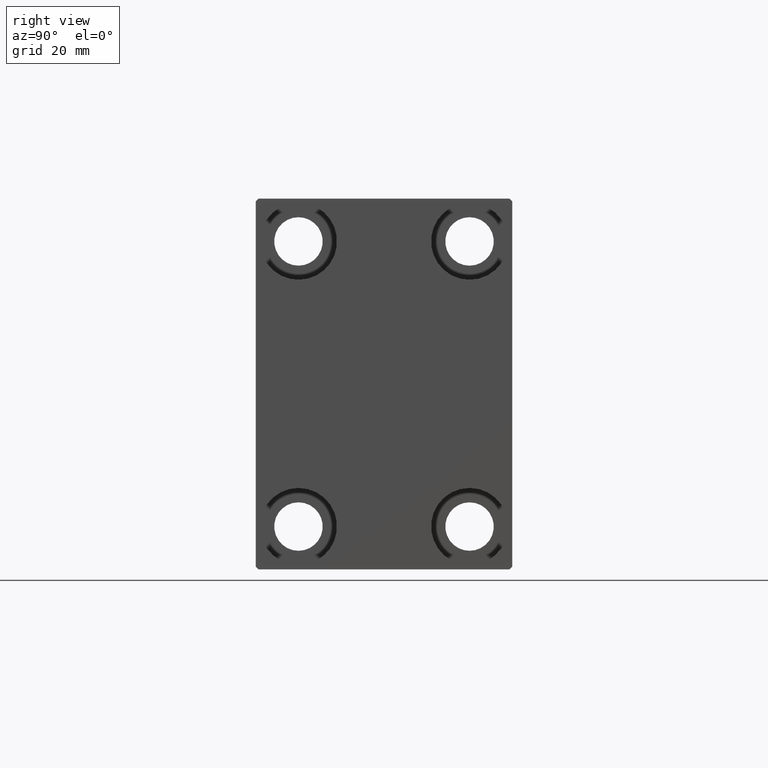
[diagram: clean part render]
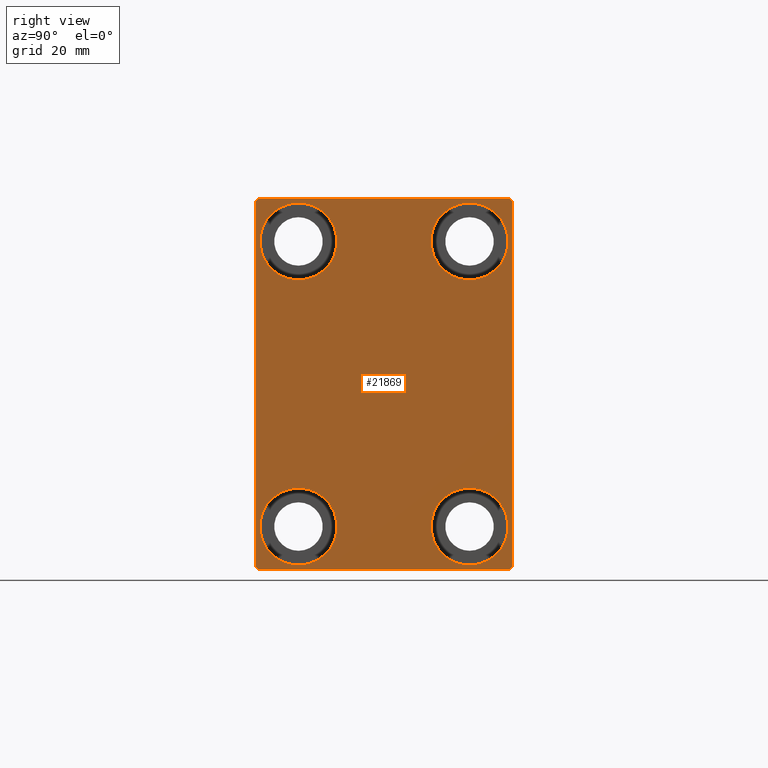
[diagram: same view with one face highlighted and labeled with its STEP entity id]
A machine part, right view. The second image highlights one B-rep face of the part: STEP entity #21869.
In plain terms, the highlighted planar face has unit normal (1, 0, 0).
Its self-contained STEP definition (entity closure, byte-faithful):
#134 = EDGE_LOOP ( 'NONE', ( #15023, #2762 ) ) ;
#248 = CARTESIAN_POINT ( 'NONE',  ( 70.00000000000000000, -27.25000000000032330, -27.24999999999957012 ) ) ;
#391 = DIRECTION ( 'NONE',  ( -1.000000000000000000, -0.000000000000000000, -0.000000000000000000 ) ) ;
#421 = EDGE_CURVE ( 'NONE', #30232, #1258, #1149, .T. ) ;
#442 = CARTESIAN_POINT ( 'NONE',  ( 70.00000000000000000, 22.49999999999999289, 32.50000000000000000 ) ) ;
#1042 = VERTEX_POINT ( 'NONE', #14074 ) ;
#1143 = LINE ( 'NONE', #14630, #5550 ) ;
#1149 = LINE ( 'NONE', #31904, #7060 ) ;
#1227 = CARTESIAN_POINT ( 'NONE',  ( 70.00000000000000000, -22.50000000000000711, 31.99999999999999289 ) ) ;
#1258 = VERTEX_POINT ( 'NONE', #27267 ) ;
#1558 = CARTESIAN_POINT ( 'NONE',  ( 70.00000000000000000, -21.99999999999999289, 32.49999999999999289 ) ) ;
#1737 = DIRECTION ( 'NONE',  ( 0.000000000000000000, 0.000000000000000000, -1.000000000000000000 ) ) ;
#1742 = CARTESIAN_POINT ( 'NONE',  ( 70.00000000000000000, 21.99999999999999289, 32.50000000000000000 ) ) ;
#2467 = AXIS2_PLACEMENT_3D ( 'NONE', #13233, #16595, #30278 ) ;
#2511 = CARTESIAN_POINT ( 'NONE',  ( 70.00000000000000000, -22.50000000000000711, -32.00000000000000711 ) ) ;
#2762 = ORIENTED_EDGE ( 'NONE', *, *, #3932, .T. ) ;
#2826 = AXIS2_PLACEMENT_3D ( 'NONE', #30967, #27614, #10333 ) ;
#3092 = AXIS2_PLACEMENT_3D ( 'NONE', #16958, #40966, #10209 ) ;
#3450 = ORIENTED_EDGE ( 'NONE', *, *, #27757, .T. ) ;
#3932 = EDGE_CURVE ( 'NONE', #31665, #33621, #43704, .T. ) ;
#4053 = CARTESIAN_POINT ( 'NONE',  ( 70.00000000000000000, 14.99999999999999645, -18.25000000000000355 ) ) ;
#4060 = LINE ( 'NONE', #11029, #24574 ) ;
#4112 = VERTEX_POINT ( 'NONE', #38382 ) ;
#5550 = VECTOR ( 'NONE', #24956, 1000.000000000000114 ) ;
#6686 = VECTOR ( 'NONE', #27658, 1000.000000000000000 ) ;
#6693 = CIRCLE ( 'NONE', #10281, 6.749999999999999112 ) ;
#6770 = ORIENTED_EDGE ( 'NONE', *, *, #16823, .T. ) ;
#7060 = VECTOR ( 'NONE', #35948, 1000.000000000000000 ) ;
#7796 = ORIENTED_EDGE ( 'NONE', *, *, #11642, .T. ) ;
#7954 = EDGE_CURVE ( 'NONE', #33621, #31665, #43057, .T. ) ;
#8033 = PLANE ( 'NONE',  #38283 ) ;
#8166 = EDGE_CURVE ( 'NONE', #4112, #1042, #27272, .T. ) ;
#8353 = VERTEX_POINT ( 'NONE', #1742 ) ;
#8555 = DIRECTION ( 'NONE',  ( -1.000000000000000000, -0.000000000000000000, -0.000000000000000000 ) ) ;
#8905 = VERTEX_POINT ( 'NONE', #11433 ) ;
#9058 = CARTESIAN_POINT ( 'NONE',  ( 70.00000000000000000, 27.25000000000014921, 27.24999999999976907 ) ) ;
#9532 = DIRECTION ( 'NONE',  ( 0.000000000000000000, 0.000000000000000000, 1.000000000000000000 ) ) ;
#9837 = ORIENTED_EDGE ( 'NONE', *, *, #40144, .T. ) ;
#9935 = ORIENTED_EDGE ( 'NONE', *, *, #35818, .T. ) ;
#10209 = DIRECTION ( 'NONE',  ( 0.000000000000000000, 0.000000000000000000, 1.000000000000000000 ) ) ;
#10281 = AXIS2_PLACEMENT_3D ( 'NONE', #42538, #11330, #18058 ) ;
#10333 = DIRECTION ( 'NONE',  ( 0.000000000000000000, 0.000000000000000000, 1.000000000000000000 ) ) ;
#10633 = VERTEX_POINT ( 'NONE', #1558 ) ;
#10893 = VECTOR ( 'NONE', #14157, 1000.000000000000000 ) ;
#11025 = VECTOR ( 'NONE', #29256, 999.9999999999998863 ) ;
#11029 = CARTESIAN_POINT ( 'NONE',  ( 70.00000000000000000, -22.50000000000000711, 32.49999999999999289 ) ) ;
#11199 = VERTEX_POINT ( 'NONE', #1227 ) ;
#11311 = ORIENTED_EDGE ( 'NONE', *, *, #28723, .T. ) ;
#11330 = DIRECTION ( 'NONE',  ( -1.000000000000000000, -0.000000000000000000, -0.000000000000000000 ) ) ;
#11433 = CARTESIAN_POINT ( 'NONE',  ( 70.00000000000000000, -14.99999999999999645, 31.75000000000000000 ) ) ;
#11622 = CARTESIAN_POINT ( 'NONE',  ( 70.00000000000000000, 0.000000000000000000, 0.000000000000000000 ) ) ;
#11642 = EDGE_CURVE ( 'NONE', #8353, #10633, #44471, .T. ) ;
#11867 = ORIENTED_EDGE ( 'NONE', *, *, #8166, .T. ) ;
#12034 = EDGE_CURVE ( 'NONE', #8905, #27203, #43886, .T. ) ;
#12072 = FACE_BOUND ( 'NONE', #26562, .T. ) ;
#12264 = VERTEX_POINT ( 'NONE', #2511 ) ;
#12423 = LINE ( 'NONE', #9058, #11025 ) ;
#12762 = EDGE_LOOP ( 'NONE', ( #11867, #14746 ) ) ;
#13233 = CARTESIAN_POINT ( 'NONE',  ( 70.00000000000000000, 14.99999999999999645, -25.00000000000000000 ) ) ;
#13305 = VECTOR ( 'NONE', #43188, 1000.000000000000114 ) ;
#14074 = CARTESIAN_POINT ( 'NONE',  ( 70.00000000000000000, -15.00000000000000355, -18.25000000000000355 ) ) ;
#14157 = DIRECTION ( 'NONE',  ( 0.000000000000000000, -1.000000000000000000, -1.541976423090495387E-16 ) ) ;
#14628 = DIRECTION ( 'NONE',  ( 0.000000000000000000, 0.000000000000000000, -1.000000000000000000 ) ) ;
#14630 = CARTESIAN_POINT ( 'NONE',  ( 70.00000000000000000, -27.25000000000000000, 27.25000000000000000 ) ) ;
#14746 = ORIENTED_EDGE ( 'NONE', *, *, #33579, .T. ) ;
#15023 = ORIENTED_EDGE ( 'NONE', *, *, #7954, .T. ) ;
#16595 = DIRECTION ( 'NONE',  ( -1.000000000000000000, -0.000000000000000000, -0.000000000000000000 ) ) ;
#16647 = AXIS2_PLACEMENT_3D ( 'NONE', #33325, #27033, #9532 ) ;
#16823 = EDGE_CURVE ( 'NONE', #24428, #8353, #12423, .T. ) ;
#16958 = CARTESIAN_POINT ( 'NONE',  ( 70.00000000000000000, -15.00000000000000355, -25.00000000000000000 ) ) ;
#17248 = DIRECTION ( 'NONE',  ( 0.000000000000000000, 0.000000000000000000, 1.000000000000000000 ) ) ;
#17331 = LINE ( 'NONE', #248, #6686 ) ;
#17514 = ORIENTED_EDGE ( 'NONE', *, *, #421, .T. ) ;
#18058 = DIRECTION ( 'NONE',  ( 0.000000000000000000, 0.000000000000000000, 1.000000000000000000 ) ) ;
#19032 = FACE_BOUND ( 'NONE', #134, .T. ) ;
#19492 = ORIENTED_EDGE ( 'NONE', *, *, #23340, .T. ) ;
#20680 = EDGE_CURVE ( 'NONE', #23088, #27974, #6693, .T. ) ;
#21853 = CIRCLE ( 'NONE', #2467, 6.749999999999999112 ) ;
#21869 = ADVANCED_FACE ( 'NONE', ( #42383, #12072, #19032, #38780, #35412 ), #8033, .T. ) ;
#22269 = VERTEX_POINT ( 'NONE', #25269 ) ;
#22303 = ORIENTED_EDGE ( 'NONE', *, *, #32644, .T. ) ;
#22491 = CIRCLE ( 'NONE', #3092, 6.749999999999999112 ) ;
#22769 = LINE ( 'NONE', #33291, #13305 ) ;
#23088 = VERTEX_POINT ( 'NONE', #42675 ) ;
#23340 = EDGE_CURVE ( 'NONE', #27974, #23088, #21853, .T. ) ;
#23415 = DIRECTION ( 'NONE',  ( -1.000000000000000000, -0.000000000000000000, -0.000000000000000000 ) ) ;
#24428 = VERTEX_POINT ( 'NONE', #44268 ) ;
#24574 = VECTOR ( 'NONE', #14628, 1000.000000000000000 ) ;
#24956 = DIRECTION ( 'NONE',  ( 0.000000000000000000, -0.7071067811865474617, -0.7071067811865474617 ) ) ;
#25269 = CARTESIAN_POINT ( 'NONE',  ( 70.00000000000000000, 22.50000000000000000, -32.00000000000002132 ) ) ;
#25452 = EDGE_LOOP ( 'NONE', ( #7796, #11311, #22303, #33495, #17514, #9837, #9935, #6770 ) ) ;
#25831 = CARTESIAN_POINT ( 'NONE',  ( 70.00000000000000000, -14.99999999999999645, 18.25000000000000355 ) ) ;
#26562 = EDGE_LOOP ( 'NONE', ( #3450, #37577 ) ) ;
#26920 = CARTESIAN_POINT ( 'NONE',  ( 70.00000000000000000, -15.00000000000000355, -25.00000000000000000 ) ) ;
#27033 = DIRECTION ( 'NONE',  ( -1.000000000000000000, -0.000000000000000000, -0.000000000000000000 ) ) ;
#27203 = VERTEX_POINT ( 'NONE', #25831 ) ;
#27267 = CARTESIAN_POINT ( 'NONE',  ( 70.00000000000000000, 22.00000000000001421, -32.50000000000000711 ) ) ;
#27272 = CIRCLE ( 'NONE', #34438, 6.749999999999999112 ) ;
#27411 = DIRECTION ( 'NONE',  ( 0.000000000000000000, 0.000000000000000000, 1.000000000000000000 ) ) ;
#27614 = DIRECTION ( 'NONE',  ( -1.000000000000000000, -0.000000000000000000, -0.000000000000000000 ) ) ;
#27658 = DIRECTION ( 'NONE',  ( -0.000000000000000000, 0.7071067811865378028, -0.7071067811865573427 ) ) ;
#27757 = EDGE_CURVE ( 'NONE', #27203, #8905, #37739, .T. ) ;
#27974 = VERTEX_POINT ( 'NONE', #4053 ) ;
#28723 = EDGE_CURVE ( 'NONE', #10633, #11199, #1143, .T. ) ;
#28970 = VECTOR ( 'NONE', #43197, 1000.000000000000000 ) ;
#29256 = DIRECTION ( 'NONE',  ( -0.000000000000000000, -0.7071067811865425767, 0.7071067811865525687 ) ) ;
#29405 = CARTESIAN_POINT ( 'NONE',  ( 70.00000000000000000, 15.00000000000000355, 25.00000000000000000 ) ) ;
#30232 = VERTEX_POINT ( 'NONE', #37791 ) ;
#30278 = DIRECTION ( 'NONE',  ( 0.000000000000000000, 0.000000000000000000, 1.000000000000000000 ) ) ;
#30967 = CARTESIAN_POINT ( 'NONE',  ( 70.00000000000000000, 15.00000000000000355, 25.00000000000000000 ) ) ;
#31552 = AXIS2_PLACEMENT_3D ( 'NONE', #29405, #8555, #43562 ) ;
#31665 = VERTEX_POINT ( 'NONE', #32780 ) ;
#31744 = CARTESIAN_POINT ( 'NONE',  ( 70.00000000000000000, 15.00000000000000355, 18.25000000000000355 ) ) ;
#31904 = CARTESIAN_POINT ( 'NONE',  ( 70.00000000000000000, -22.50000000000000711, -32.50000000000000711 ) ) ;
#32644 = EDGE_CURVE ( 'NONE', #11199, #12264, #4060, .T. ) ;
#32780 = CARTESIAN_POINT ( 'NONE',  ( 70.00000000000000000, 15.00000000000000355, 31.75000000000000000 ) ) ;
#33074 = EDGE_CURVE ( 'NONE', #12264, #30232, #17331, .T. ) ;
#33291 = CARTESIAN_POINT ( 'NONE',  ( 70.00000000000000000, 27.25000000000032685, -27.24999999999957012 ) ) ;
#33325 = CARTESIAN_POINT ( 'NONE',  ( 70.00000000000000000, -14.99999999999999645, 25.00000000000000000 ) ) ;
#33495 = ORIENTED_EDGE ( 'NONE', *, *, #33074, .T. ) ;
#33579 = EDGE_CURVE ( 'NONE', #1042, #4112, #22491, .T. ) ;
#33621 = VERTEX_POINT ( 'NONE', #31744 ) ;
#34438 = AXIS2_PLACEMENT_3D ( 'NONE', #26920, #391, #17248 ) ;
#34858 = AXIS2_PLACEMENT_3D ( 'NONE', #40681, #23415, #27411 ) ;
#35412 = FACE_OUTER_BOUND ( 'NONE', #25452, .T. ) ;
#35762 = EDGE_LOOP ( 'NONE', ( #39415, #19492 ) ) ;
#35818 = EDGE_CURVE ( 'NONE', #22269, #24428, #36229, .T. ) ;
#35948 = DIRECTION ( 'NONE',  ( 0.000000000000000000, 1.000000000000000000, 0.000000000000000000 ) ) ;
#36229 = LINE ( 'NONE', #42139, #28970 ) ;
#37577 = ORIENTED_EDGE ( 'NONE', *, *, #12034, .T. ) ;
#37739 = CIRCLE ( 'NONE', #34858, 6.749999999999999112 ) ;
#37791 = CARTESIAN_POINT ( 'NONE',  ( 70.00000000000000000, -22.00000000000002132, -32.50000000000000711 ) ) ;
#38283 = AXIS2_PLACEMENT_3D ( 'NONE', #11622, #42162, #1737 ) ;
#38382 = CARTESIAN_POINT ( 'NONE',  ( 70.00000000000000000, -15.00000000000000355, -31.75000000000000000 ) ) ;
#38780 = FACE_BOUND ( 'NONE', #12762, .T. ) ;
#39415 = ORIENTED_EDGE ( 'NONE', *, *, #20680, .T. ) ;
#40144 = EDGE_CURVE ( 'NONE', #1258, #22269, #22769, .T. ) ;
#40681 = CARTESIAN_POINT ( 'NONE',  ( 70.00000000000000000, -14.99999999999999645, 25.00000000000000000 ) ) ;
#40966 = DIRECTION ( 'NONE',  ( -1.000000000000000000, -0.000000000000000000, -0.000000000000000000 ) ) ;
#42139 = CARTESIAN_POINT ( 'NONE',  ( 70.00000000000000000, 22.50000000000000000, -32.50000000000000711 ) ) ;
#42162 = DIRECTION ( 'NONE',  ( 1.000000000000000000, 0.000000000000000000, 0.000000000000000000 ) ) ;
#42383 = FACE_BOUND ( 'NONE', #35762, .T. ) ;
#42538 = CARTESIAN_POINT ( 'NONE',  ( 70.00000000000000000, 14.99999999999999645, -25.00000000000000000 ) ) ;
#42675 = CARTESIAN_POINT ( 'NONE',  ( 70.00000000000000000, 14.99999999999999645, -31.75000000000000000 ) ) ;
#43057 = CIRCLE ( 'NONE', #31552, 6.749999999999999112 ) ;
#43188 = DIRECTION ( 'NONE',  ( -0.000000000000000000, 0.7071067811865376918, 0.7071067811865573427 ) ) ;
#43197 = DIRECTION ( 'NONE',  ( 0.000000000000000000, -1.067522139062650425E-16, 1.000000000000000000 ) ) ;
#43562 = DIRECTION ( 'NONE',  ( 0.000000000000000000, 0.000000000000000000, 1.000000000000000000 ) ) ;
#43704 = CIRCLE ( 'NONE', #2826, 6.749999999999999112 ) ;
#43886 = CIRCLE ( 'NONE', #16647, 6.749999999999999112 ) ;
#44268 = CARTESIAN_POINT ( 'NONE',  ( 70.00000000000000000, 22.49999999999999289, 31.99999999999999289 ) ) ;
#44471 = LINE ( 'NONE', #442, #10893 ) ;